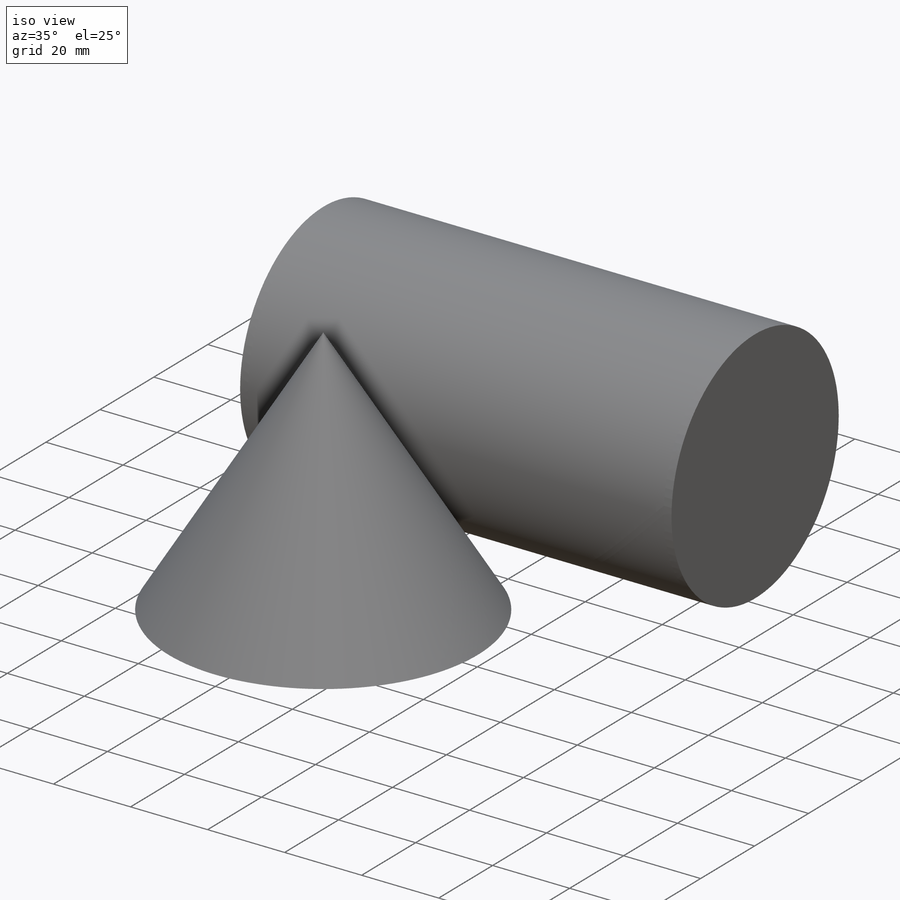
[diagram: iso view]
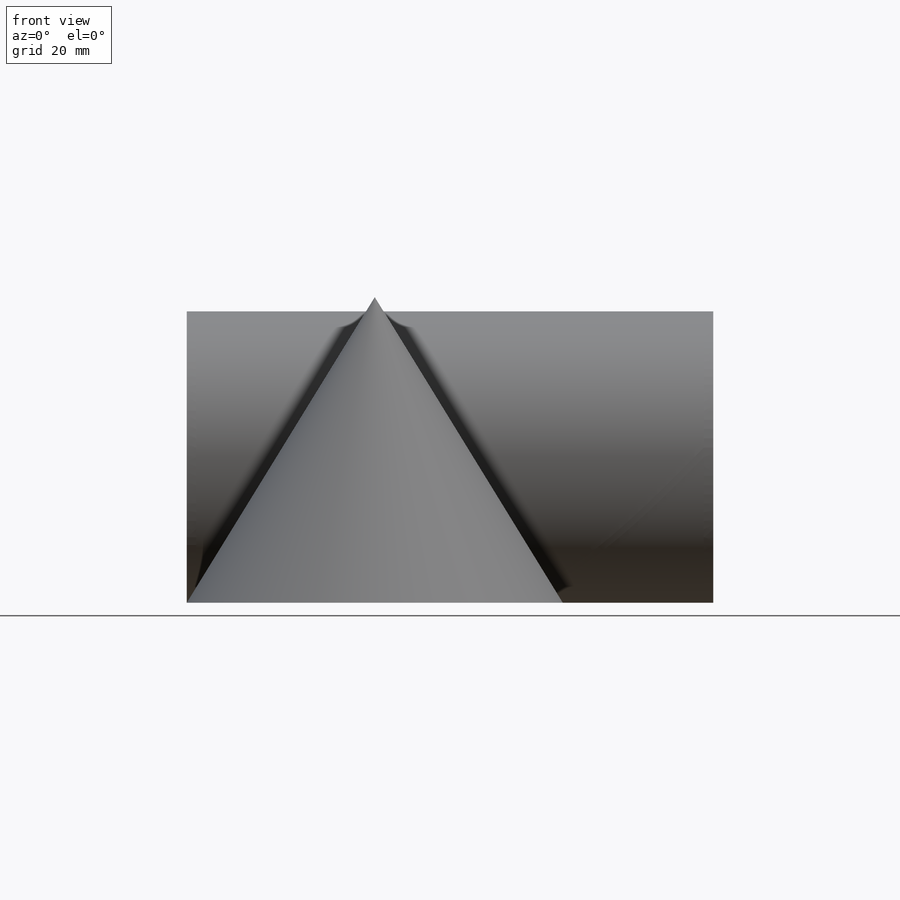
[diagram: front view]
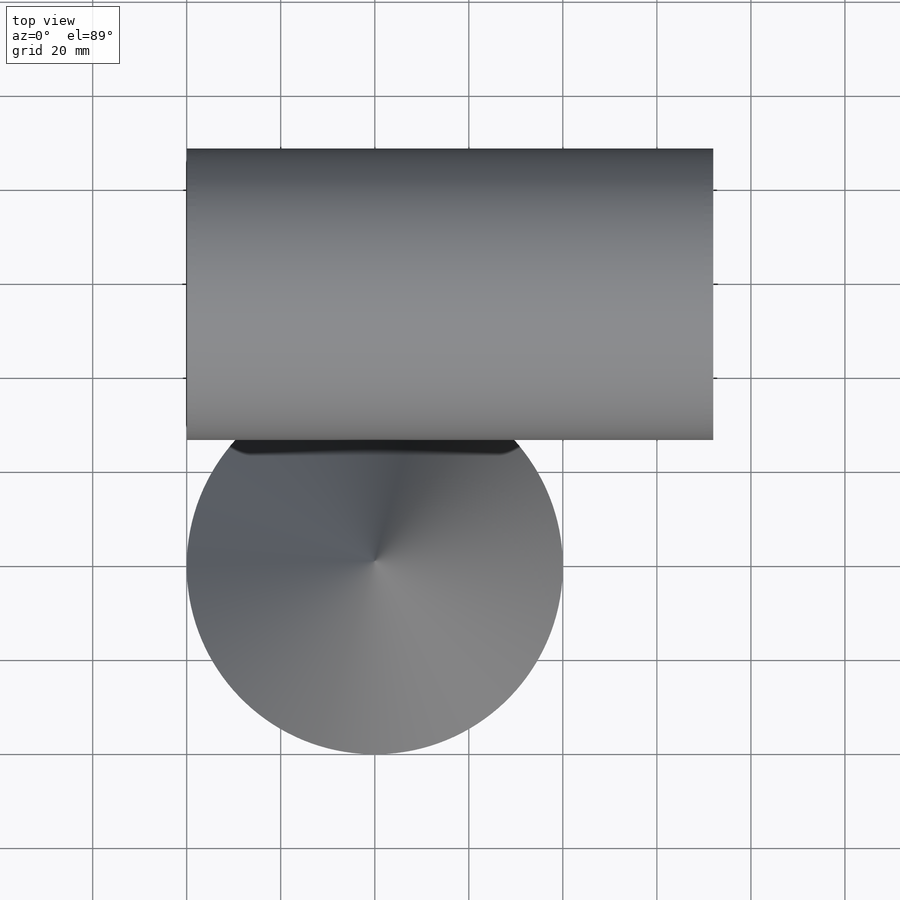
[diagram: top view]
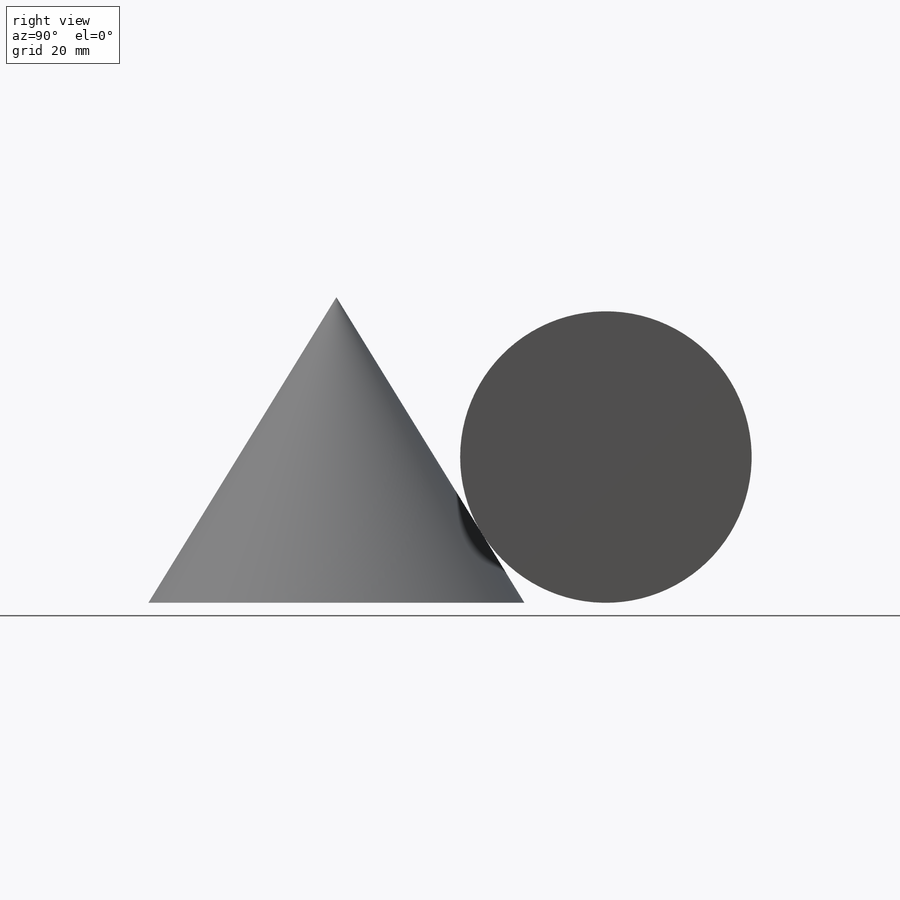
[diagram: right view]
SOLIDWORKS PART (.sldprt)
format: sldprt  version: not decoded by parser v0  size: 545,792 bytes
history: native  units: mm
features: sketch x5, revolve x2, material x1, extrude x1, plane x1 (+14 scaffold rows collapsed)
feature tree (24):
  scaffold x14  (default folders/planes/origin — collapsed)
  material  "Material <not specified>"
  sketch  "Sketch1"  dims[D1=40.0mm D2=65.0mm]
  revolve  "Revolve1"  Angle=360deg
  sketch  "Sketch2"  dims[D1=31.0mm]
  extrude  "Extrude1"  Depth=72mm
  sketch  "Sketch3"  dims[D1=16.0mm]
  plane  "Plane1"
  sketch  "Sketch5"  dims[D1=16.0mm]
  sketch  "Sketch6"  dims[D1=~16.553226mm]
  revolve  "Revolve2"  Angle=360deg
decode coverage: 8 of 8 modeling features carry decoded parameters
note: ~ marks probable driven/reference dimensions
note: suppression state not decoded; provenance and decode notes live in map.json
